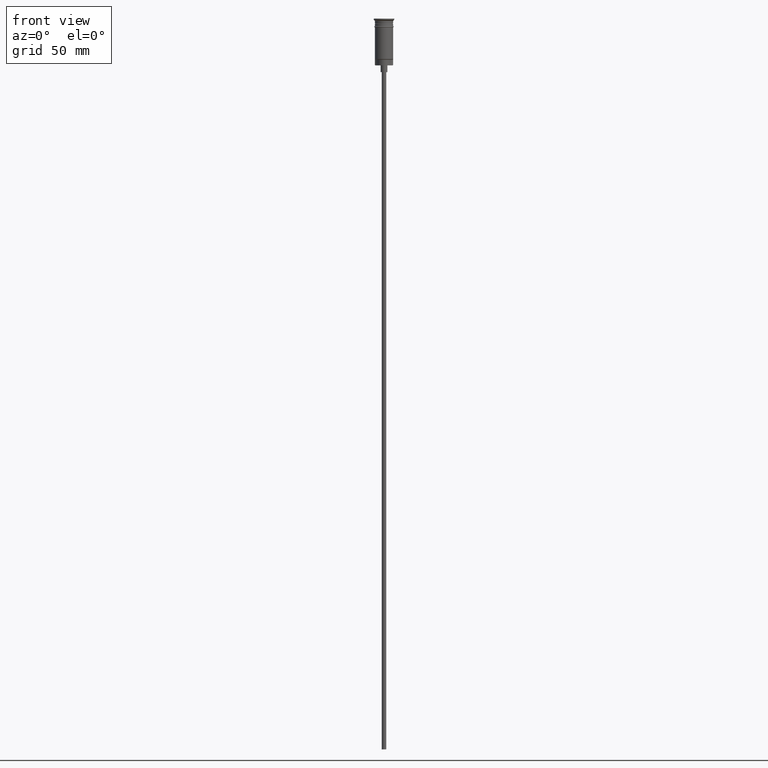
[diagram: clean part render]
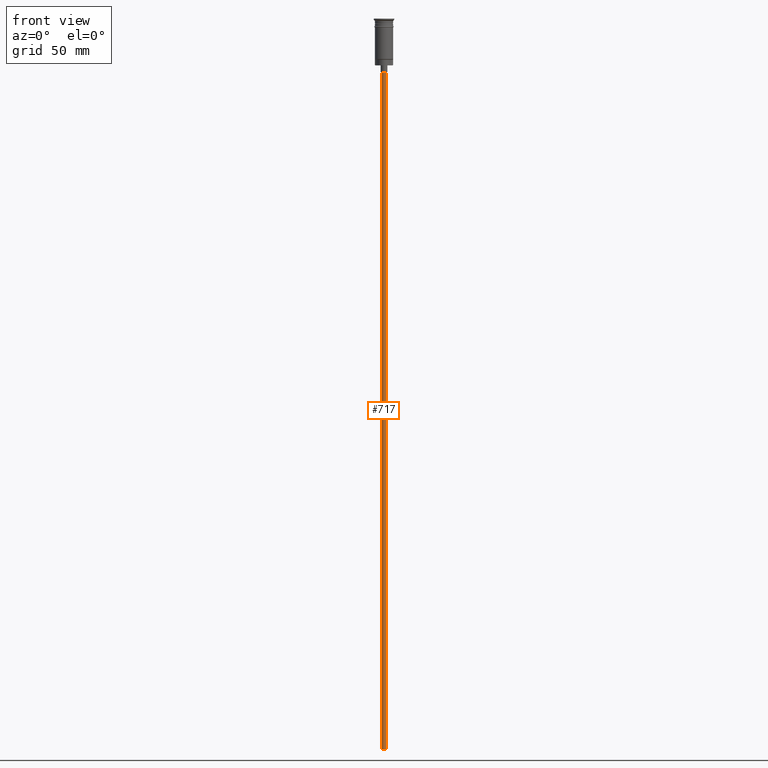
[diagram: same view with one face highlighted and labeled with its STEP entity id]
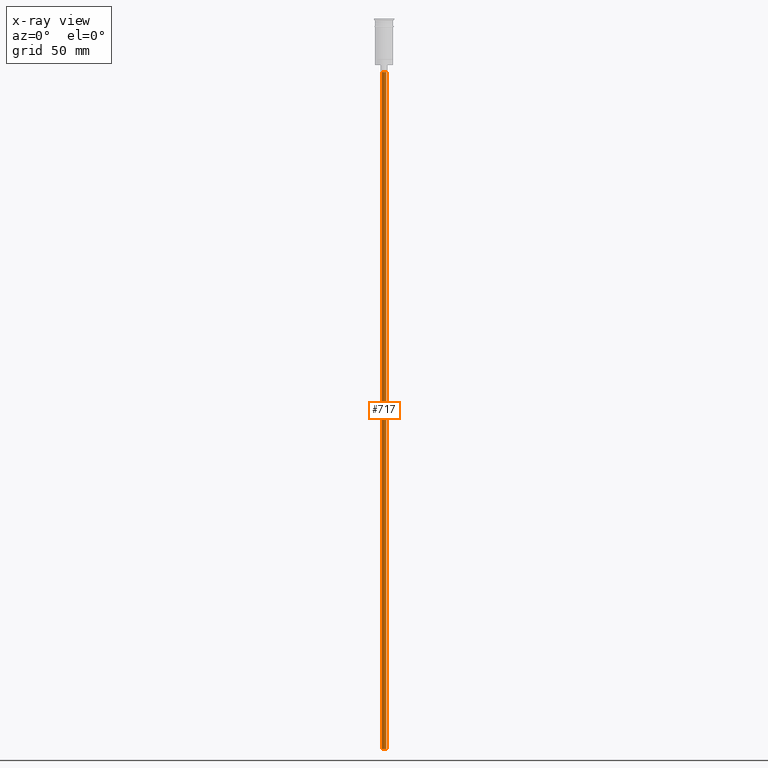
[diagram: x-ray of the same camera — body ghosted, the highlighted face saturated]
A machine part, front view. The second image highlights one B-rep face of the part: STEP entity #717.
The next image is the same camera in x-ray: the body ghosted, the highlighted face saturated — about 0% of this face is hidden behind the body in this view.
In plain terms, the highlighted cylindrical surface (edge-blend (fillet) strip) has radius 1 mm, axis along (-0, -0, 1).
Its self-contained STEP definition (entity closure, byte-faithful):
#33 = DIRECTION ( 'NONE',  ( -1.000000000000000000, 0.000000000000000000, 0.000000000000000000 ) ) ;
#62 = CARTESIAN_POINT ( 'NONE',  ( -0.9999999999999997780, 1.224646799147352961E-16, -320.5000000000000000 ) ) ;
#63 = CARTESIAN_POINT ( 'NONE',  ( 0.000000000000000000, 0.000000000000000000, -23.49999999999999645 ) ) ;
#152 = LINE ( 'NONE', #1501, #733 ) ;
#183 = CARTESIAN_POINT ( 'NONE',  ( 0.000000000000000000, 0.000000000000000000, -320.5000000000000000 ) ) ;
#191 = CYLINDRICAL_SURFACE ( 'NONE', #671, 0.9999999999999997780 ) ;
#272 = DIRECTION ( 'NONE',  ( -1.000000000000000000, 0.000000000000000000, 0.000000000000000000 ) ) ;
#275 = VERTEX_POINT ( 'NONE', #773 ) ;
#334 = ORIENTED_EDGE ( 'NONE', *, *, #621, .T. ) ;
#379 = EDGE_CURVE ( 'NONE', #1248, #275, #1082, .T. ) ;
#400 = CARTESIAN_POINT ( 'NONE',  ( 0.9999999999999997780, 0.000000000000000000, -320.5000000000000000 ) ) ;
#412 = CIRCLE ( 'NONE', #544, 0.9999999999999997780 ) ;
#518 = CIRCLE ( 'NONE', #673, 0.9999999999999997780 ) ;
#523 = DIRECTION ( 'NONE',  ( 0.000000000000000000, 0.000000000000000000, -1.000000000000000000 ) ) ;
#544 = AXIS2_PLACEMENT_3D ( 'NONE', #63, #523, #33 ) ;
#566 = VERTEX_POINT ( 'NONE', #1415 ) ;
#621 = EDGE_CURVE ( 'NONE', #1578, #566, #152, .T. ) ;
#640 = EDGE_LOOP ( 'NONE', ( #1511, #659, #334, #711 ) ) ;
#649 = DIRECTION ( 'NONE',  ( -0.000000000000000000, -0.000000000000000000, 1.000000000000000000 ) ) ;
#659 = ORIENTED_EDGE ( 'NONE', *, *, #1132, .F. ) ;
#671 = AXIS2_PLACEMENT_3D ( 'NONE', #915, #1311, #1547 ) ;
#673 = AXIS2_PLACEMENT_3D ( 'NONE', #183, #1056, #272 ) ;
#711 = ORIENTED_EDGE ( 'NONE', *, *, #1568, .T. ) ;
#717 = ADVANCED_FACE ( 'NONE', ( #1174 ), #191, .T. ) ;
#733 = VECTOR ( 'NONE', #649, 1000.000000000000000 ) ;
#773 = CARTESIAN_POINT ( 'NONE',  ( -0.9999999999999997780, 1.224646799147352961E-16, -23.49999999999999645 ) ) ;
#915 = CARTESIAN_POINT ( 'NONE',  ( 0.000000000000000000, 0.000000000000000000, -320.5000000000000000 ) ) ;
#1056 = DIRECTION ( 'NONE',  ( 0.000000000000000000, 0.000000000000000000, -1.000000000000000000 ) ) ;
#1082 = LINE ( 'NONE', #62, #1164 ) ;
#1132 = EDGE_CURVE ( 'NONE', #1578, #1248, #518, .T. ) ;
#1164 = VECTOR ( 'NONE', #1570, 1000.000000000000000 ) ;
#1174 = FACE_OUTER_BOUND ( 'NONE', #640, .T. ) ;
#1248 = VERTEX_POINT ( 'NONE', #1326 ) ;
#1311 = DIRECTION ( 'NONE',  ( -0.000000000000000000, -0.000000000000000000, 1.000000000000000000 ) ) ;
#1326 = CARTESIAN_POINT ( 'NONE',  ( -0.9999999999999997780, 1.224646799147352961E-16, -320.5000000000000000 ) ) ;
#1415 = CARTESIAN_POINT ( 'NONE',  ( 0.9999999999999997780, 0.000000000000000000, -23.49999999999999645 ) ) ;
#1501 = CARTESIAN_POINT ( 'NONE',  ( 0.9999999999999997780, 0.000000000000000000, -320.5000000000000000 ) ) ;
#1511 = ORIENTED_EDGE ( 'NONE', *, *, #379, .F. ) ;
#1547 = DIRECTION ( 'NONE',  ( 1.000000000000000000, 0.000000000000000000, 0.000000000000000000 ) ) ;
#1568 = EDGE_CURVE ( 'NONE', #566, #275, #412, .T. ) ;
#1570 = DIRECTION ( 'NONE',  ( -0.000000000000000000, -0.000000000000000000, 1.000000000000000000 ) ) ;
#1578 = VERTEX_POINT ( 'NONE', #400 ) ;